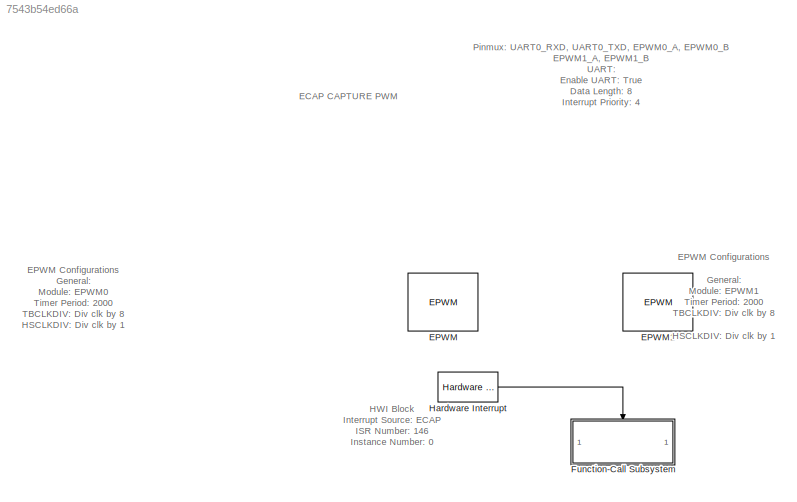
MODEL slx_7543b54ed66a
KIND model
CONFIG AbsTol = auto
CONFIG EnableMultiTasking = off
CONFIG FixedStep = auto
CONFIG MaxStep = auto
CONFIG MinStep = auto
CONFIG RelTol = 1e-3
CONFIG SampleTimeConstraint = Unconstrained
CONFIG SolverName = FixedStepAuto
CONFIG StartTime = 0.0
CONFIG StopTime = 10.0
BLOCK [Reference] EPWM  REF=peripheral_library_blocks_am261x/EPWM
  SourceBlock = peripheral_library_blocks_am261x/EPWM
  SourceType = EPWM_AM261X
BLOCK [Reference] EPWM1  REF=peripheral_library_blocks_am261x/EPWM
  SourceBlock = peripheral_library_blocks_am261x/EPWM
  SourceType = EPWM_AM261X
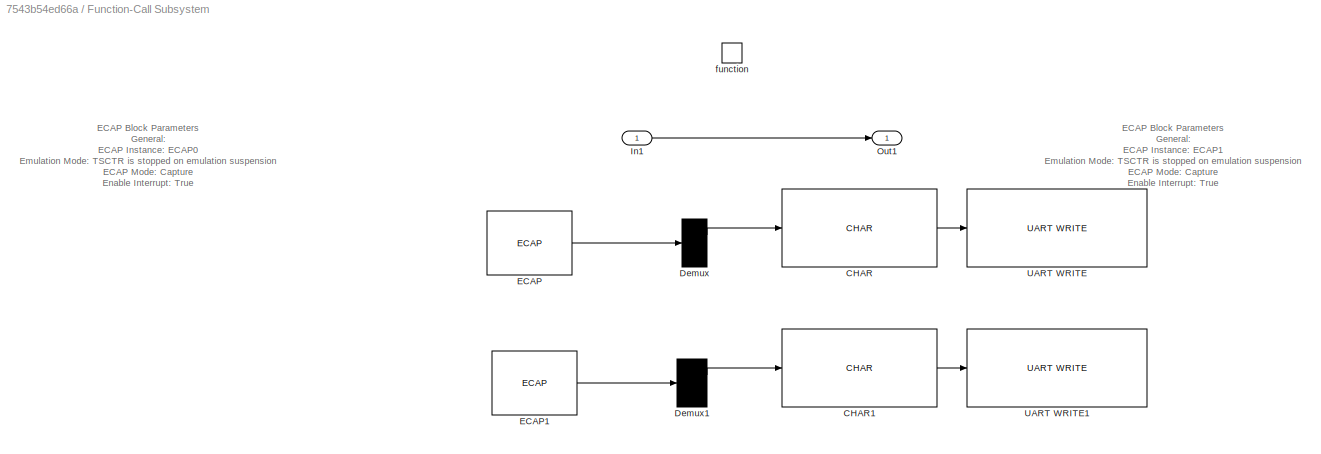
BLOCK [SubSystem] Function-Call Subsystem
  TreatAsAtomicUnit = on
BLOCK [Reference] Function-Call Subsystem/CHAR  REF=peripheral_library_blocks_am261x/CHAR
  SourceBlock = peripheral_library_blocks_am261x/CHAR
  SourceType = CHAR
BLOCK [Reference] Function-Call Subsystem/CHAR1  REF=peripheral_library_blocks_am261x/CHAR
  SourceBlock = peripheral_library_blocks_am261x/CHAR
  SourceType = CHAR
BLOCK [Demux] Function-Call Subsystem/Demux
BLOCK [Demux] Function-Call Subsystem/Demux1
BLOCK [Reference] Function-Call Subsystem/ECAP  REF=peripheral_library_blocks_am261x/ECAP
  SourceBlock = peripheral_library_blocks_am261x/ECAP
  SourceType = ECAP_AM261X
BLOCK [Reference] Function-Call Subsystem/ECAP1  REF=peripheral_library_blocks_am261x/ECAP
  SourceBlock = peripheral_library_blocks_am261x/ECAP
  SourceType = ECAP_AM261X
BLOCK [Inport] Function-Call Subsystem/In1
BLOCK [Outport] Function-Call Subsystem/Out1
BLOCK [Reference] Function-Call Subsystem/UART WRITE  REF=peripheral_library_blocks_am261x/UART WRITE
  SourceBlock = peripheral_library_blocks_am261x/UART WRITE
  SourceType = UART_WRITE_AM261X
BLOCK [Reference] Function-Call Subsystem/UART WRITE1  REF=peripheral_library_blocks_am261x/UART WRITE
  SourceBlock = peripheral_library_blocks_am261x/UART WRITE
  SourceType = UART_WRITE_AM261X
BLOCK [TriggerPort] Function-Call Subsystem/function
  StatesWhenEnabling = held
  TriggerType = function-call
  VariantControl = (inherit)
BLOCK [Reference] Hardware Interrupt  REF=HWI_lib/Hardware Interrupt
  SourceBlock = HWI_lib/Hardware Interrupt
  SourceProductName = Embedded Coder Support Package for AM263x - HWI Block
ANNOTATION (root): EPWM Configurations General: Module: EPWM0 Timer Period: 2000 TBCLKDIV: Div clk by 8 HSCLKDIV: Div clk by 1 Counter Mode: Up Count Sync-in src: EPWM0 sync-out signal Sync out src: CNTR Zero Counter Compare: CMPA Value: 1000 CMPB Value: 500 Action Qualifier: EPWMXA when CNTR equals zero: Set output pins to high EPWMXA when CNTR CMPAU: Set output pins to low EPWMXB when CNTR equals zero: Set output ...<+59ch>
ANNOTATION (root): EPWM Configurations General: Module: EPWM1 Timer Period: 2000 TBCLKDIV: Div clk by 8 HSCLKDIV: Div clk by 1 Counter Mode: Up Count Enable phase shift: True Phase value: 300 Sync-in src: EPWM0 sync-out signal Sync out src: CNTR Zero Counter Compare: CMPA Value: 1000 CMPB Value: 500 Action Qualifier: EPWMXA when CNTR equals zero: Set output pins to high EPWMXA when CNTR CMPAU: Set output pins to low...<+101ch>
ANNOTATION (root): HWI Block Interrupt Source: ECAP ISR Number: 146 Instance Number: 0
ANNOTATION (root): ECAP CAPTURE PWM
ANNOTATION (root): Pinmux: UART0_RXD, UART0_TXD, EPWM0_A, EPWM0_B EPWM1_A, EPWM1_B UART: Enable UART: True Data Length: 8 Interrupt Priority: 4 RX Trigger Level: 8 TX Trigger Level: 32 INTXBAR0 : ECAP0_INT Input XBAR0: GPIO43 Input XBAR1 : GPIO45
ANNOTATION Function-Call Subsystem: ECAP Block Parameters General: ECAP Instance: ECAP0 Emulation Mode: TSCTR is stopped on emulation suspension ECAP Mode: Capture Enable Interrupt: True Phase Shift Count: 0 Sync-in pulse: EPWM0 syncout signal Capture Mode: Capture Mode: Continuous Capture Capture stop event: ECAP event 4 Event Prescaler: 0 Event 1 Polarity: Falling edge polarity Event 2 Polarity: Rising edge polarity Event 3 Polari...<+148ch>
ANNOTATION Function-Call Subsystem: ECAP Block Parameters General: ECAP Instance: ECAP1 Emulation Mode: TSCTR is stopped on emulation suspension ECAP Mode: Capture Enable Interrupt: True Phase Shift Count: 0 Sync-in pulse: EPWM0 syncout signal Capture Mode: Capture Mode: Continuous Capture Capture stop event: ECAP event 4 Event Prescaler: 0 Event 1 Polarity: Falling edge polarity Event 2 Polarity: Rising edge polarity Event 3 Polari...<+148ch>
LINE Function-Call Subsystem/CHAR1:1 -> Function-Call Subsystem/UART WRITE1:1
LINE Function-Call Subsystem/CHAR:1 -> Function-Call Subsystem/UART WRITE:1
LINE Function-Call Subsystem/Demux1:1 -> Function-Call Subsystem/CHAR1:1
LINE Function-Call Subsystem/Demux:1 -> Function-Call Subsystem/CHAR:1
LINE Function-Call Subsystem/ECAP1:1 -> Function-Call Subsystem/Demux1:1
LINE Function-Call Subsystem/ECAP:1 -> Function-Call Subsystem/Demux:1
LINE Function-Call Subsystem/In1:1 -> Function-Call Subsystem/Out1:1
LINE Hardware Interrupt:1 -> Function-Call Subsystem:trigger
